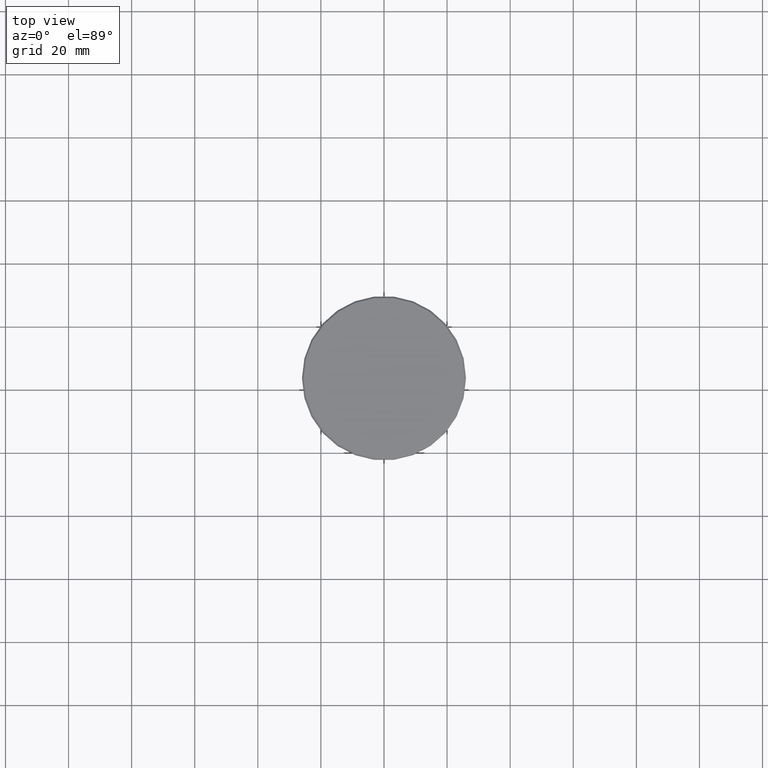
[diagram: clean part render]
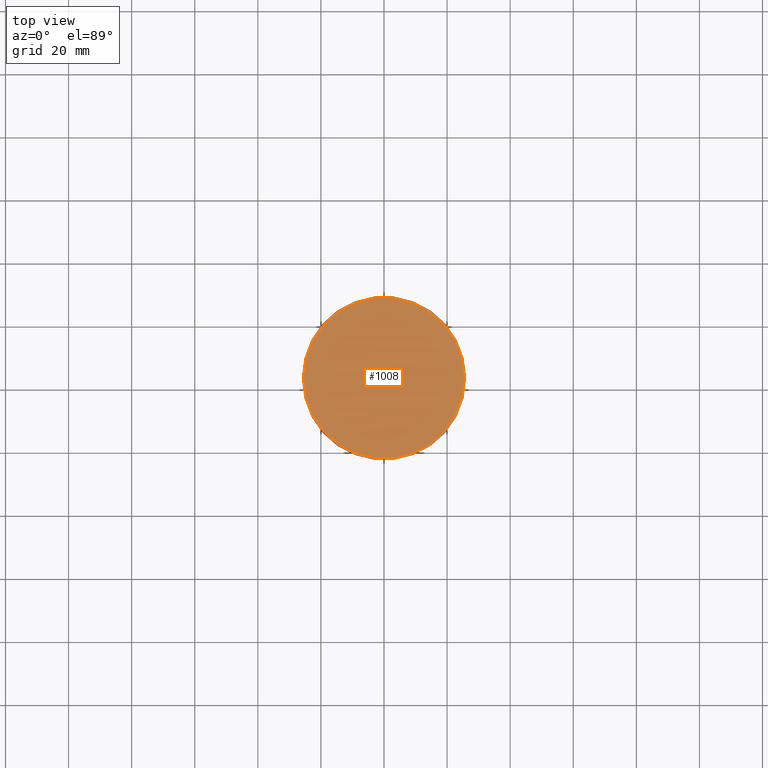
[diagram: same view with one face highlighted and labeled with its STEP entity id]
A machine part, top view. The second image highlights one B-rep face of the part: STEP entity #1008.
In plain terms, the highlighted planar face has unit normal (0, -0, 1).
Its self-contained STEP definition (entity closure, byte-faithful):
#147 = FACE_OUTER_BOUND ( 'NONE', #514, .T. ) ;
#150 = EDGE_CURVE ( 'NONE', #366, #1147, #1104, .T. ) ;
#173 = EDGE_CURVE ( 'NONE', #1147, #366, #464, .T. ) ;
#202 = AXIS2_PLACEMENT_3D ( 'NONE', #950, #290, #854 ) ;
#283 = DIRECTION ( 'NONE',  ( 0.000000000000000000, -0.000000000000000000, 1.000000000000000000 ) ) ;
#290 = DIRECTION ( 'NONE',  ( -0.000000000000000000, -0.000000000000000000, 1.000000000000000000 ) ) ;
#366 = VERTEX_POINT ( 'NONE', #1159 ) ;
#464 = CIRCLE ( 'NONE', #202, 25.49999999999997158 ) ;
#514 = EDGE_LOOP ( 'NONE', ( #911, #960 ) ) ;
#522 = AXIS2_PLACEMENT_3D ( 'NONE', #1001, #283, #997 ) ;
#534 = CARTESIAN_POINT ( 'NONE',  ( 0.000000000000000000, 0.000000000000000000, 0.000000000000000000 ) ) ;
#581 = AXIS2_PLACEMENT_3D ( 'NONE', #534, #671, #778 ) ;
#671 = DIRECTION ( 'NONE',  ( -0.000000000000000000, -0.000000000000000000, 1.000000000000000000 ) ) ;
#725 = PLANE ( 'NONE',  #522 ) ;
#778 = DIRECTION ( 'NONE',  ( 1.000000000000000000, 0.000000000000000000, 0.000000000000000000 ) ) ;
#853 = CARTESIAN_POINT ( 'NONE',  ( 25.49999999999997158, 3.153465507804432826E-15, 0.000000000000000000 ) ) ;
#854 = DIRECTION ( 'NONE',  ( 1.000000000000000000, 0.000000000000000000, 0.000000000000000000 ) ) ;
#911 = ORIENTED_EDGE ( 'NONE', *, *, #150, .T. ) ;
#950 = CARTESIAN_POINT ( 'NONE',  ( 0.000000000000000000, 0.000000000000000000, 0.000000000000000000 ) ) ;
#960 = ORIENTED_EDGE ( 'NONE', *, *, #173, .T. ) ;
#997 = DIRECTION ( 'NONE',  ( 1.000000000000000000, 0.000000000000000000, 0.000000000000000000 ) ) ;
#1001 = CARTESIAN_POINT ( 'NONE',  ( 0.000000000000000000, 0.000000000000000000, 0.000000000000000000 ) ) ;
#1008 = ADVANCED_FACE ( 'NONE', ( #147 ), #725, .T. ) ;
#1104 = CIRCLE ( 'NONE', #581, 25.49999999999997158 ) ;
#1147 = VERTEX_POINT ( 'NONE', #853 ) ;
#1159 = CARTESIAN_POINT ( 'NONE',  ( -25.49999999999997158, 0.000000000000000000, 0.000000000000000000 ) ) ;